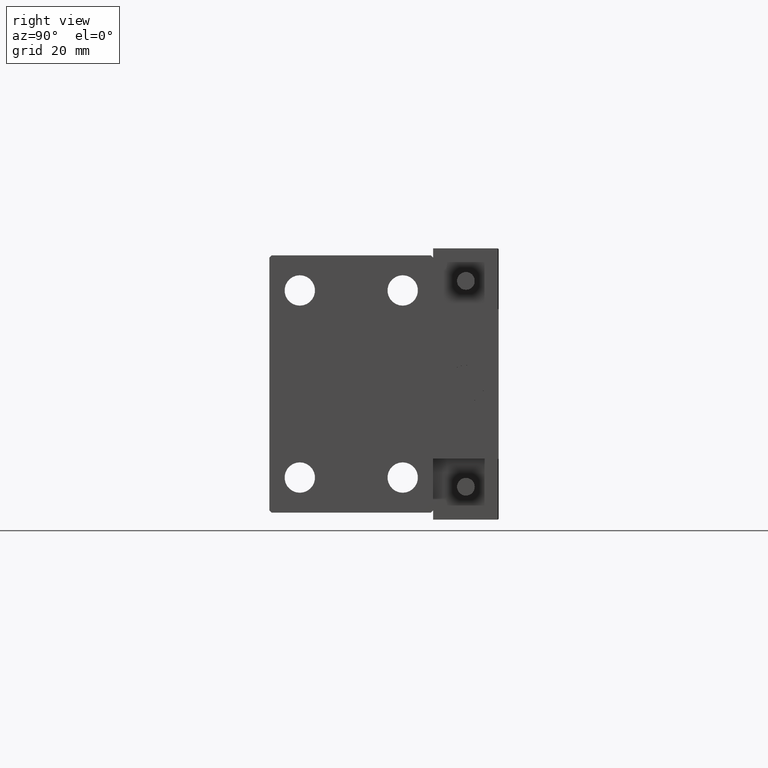
[diagram: clean part render]
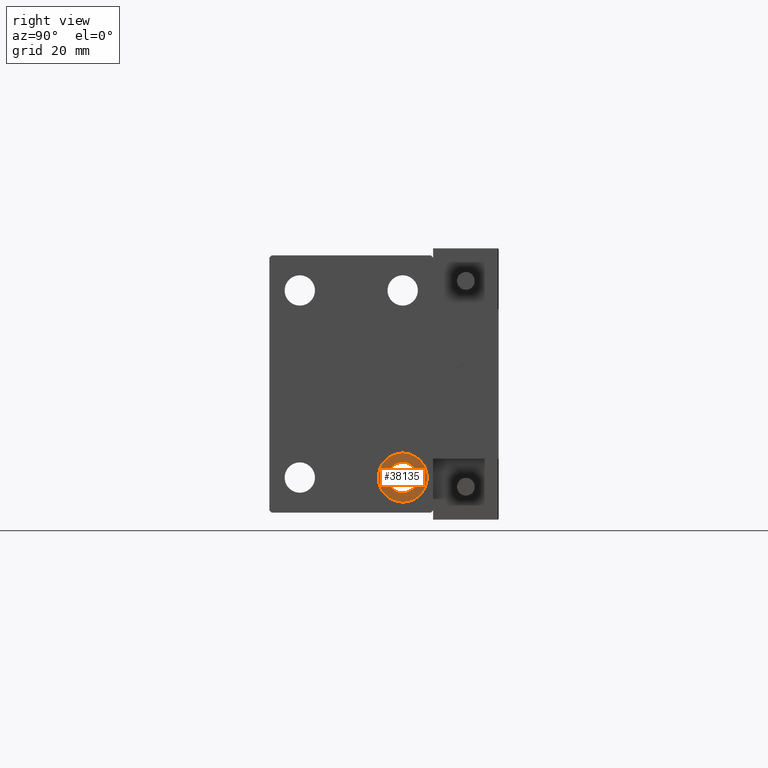
[diagram: same view with one face highlighted and labeled with its STEP entity id]
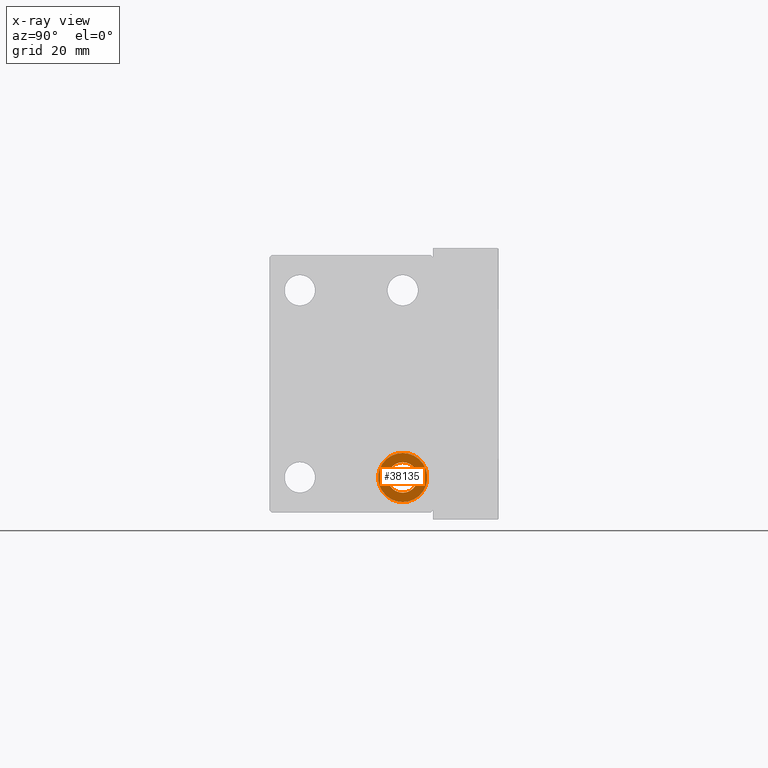
[diagram: x-ray of the same camera — body ghosted, the highlighted face saturated]
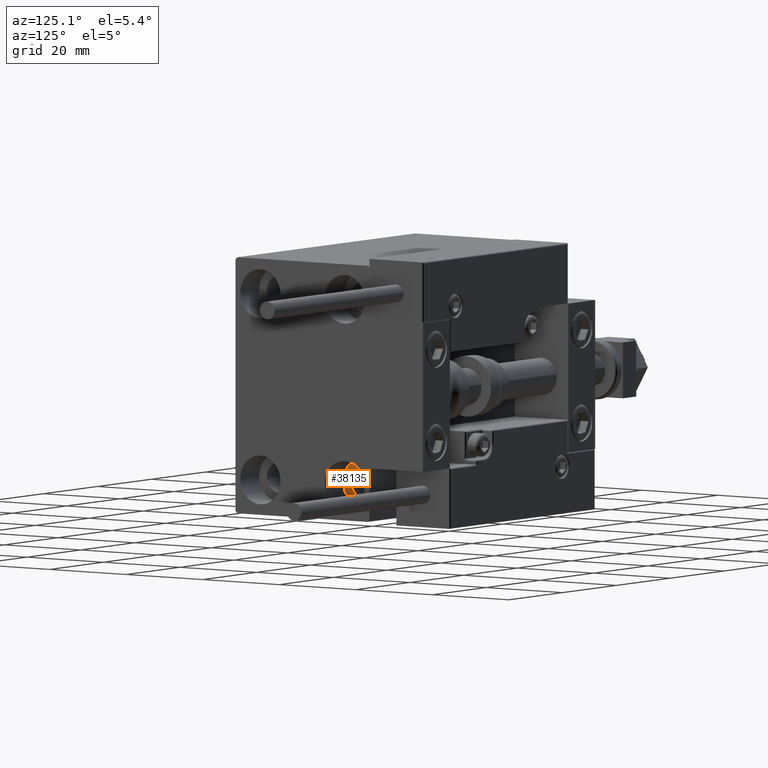
[diagram: same view with one face highlighted and labeled with its STEP entity id]
A machine part, right view. The second image highlights one B-rep face of the part: STEP entity #38135.
The next image is the same camera in x-ray: the body ghosted, the highlighted face saturated — about 0% of this face is hidden behind the body in this view.
A second angle (auxiliary view) of the same face is appended — the face is thin or edge-on in the first view.
In plain terms, the highlighted planar face has unit normal (1, 0, 0).
Its self-contained STEP definition (entity closure, byte-faithful):
#141 = DIRECTION ( 'NONE',  ( -1.000000000000000000, -0.000000000000000000, -0.000000000000000000 ) ) ;
#470 = AXIS2_PLACEMENT_3D ( 'NONE', #50059, #4140, #23151 ) ;
#475 = FACE_OUTER_BOUND ( 'NONE', #32744, .T. ) ;
#1004 = EDGE_CURVE ( 'NONE', #49823, #31618, #28019, .T. ) ;
#2010 = CARTESIAN_POINT ( 'NONE',  ( 59.00000000000000711, 11.00000000000000355, -16.75000000000000000 ) ) ;
#2037 = AXIS2_PLACEMENT_3D ( 'NONE', #19904, #141, #11539 ) ;
#3212 = CARTESIAN_POINT ( 'NONE',  ( 59.00000000000000711, 11.00000000000000355, -23.25000000000000000 ) ) ;
#3259 = ORIENTED_EDGE ( 'NONE', *, *, #3678, .T. ) ;
#3678 = EDGE_CURVE ( 'NONE', #31618, #49823, #37736, .T. ) ;
#4140 = DIRECTION ( 'NONE',  ( -1.000000000000000000, -0.000000000000000000, -0.000000000000000000 ) ) ;
#5265 = FACE_BOUND ( 'NONE', #18718, .T. ) ;
#6152 = DIRECTION ( 'NONE',  ( -1.000000000000000000, -0.000000000000000000, -0.000000000000000000 ) ) ;
#6706 = CARTESIAN_POINT ( 'NONE',  ( 59.00000000000000711, 11.00000000000000355, -25.25000000000000000 ) ) ;
#7121 = AXIS2_PLACEMENT_3D ( 'NONE', #29823, #18664, #14616 ) ;
#9822 = EDGE_CURVE ( 'NONE', #16855, #29879, #34684, .T. ) ;
#11539 = DIRECTION ( 'NONE',  ( 0.000000000000000000, 0.000000000000000000, 1.000000000000000000 ) ) ;
#11880 = CARTESIAN_POINT ( 'NONE',  ( 59.00000000000000711, 11.00000000000000355, -20.00000000000000000 ) ) ;
#13437 = AXIS2_PLACEMENT_3D ( 'NONE', #37362, #6152, #14269 ) ;
#14269 = DIRECTION ( 'NONE',  ( 0.000000000000000000, 0.000000000000000000, -1.000000000000000000 ) ) ;
#14616 = DIRECTION ( 'NONE',  ( 0.000000000000000000, 0.000000000000000000, 1.000000000000000000 ) ) ;
#15688 = DIRECTION ( 'NONE',  ( 0.000000000000000000, 0.000000000000000000, 1.000000000000000000 ) ) ;
#16855 = VERTEX_POINT ( 'NONE', #6706 ) ;
#18260 = ORIENTED_EDGE ( 'NONE', *, *, #1004, .T. ) ;
#18664 = DIRECTION ( 'NONE',  ( -1.000000000000000000, -0.000000000000000000, -0.000000000000000000 ) ) ;
#18718 = EDGE_LOOP ( 'NONE', ( #3259, #18260 ) ) ;
#19904 = CARTESIAN_POINT ( 'NONE',  ( 59.00000000000000711, 11.00000000000000355, -20.00000000000000000 ) ) ;
#23151 = DIRECTION ( 'NONE',  ( 0.000000000000000000, 0.000000000000000000, -1.000000000000000000 ) ) ;
#23896 = CIRCLE ( 'NONE', #2037, 5.250000000000000888 ) ;
#24042 = DIRECTION ( 'NONE',  ( 1.000000000000000000, 0.000000000000000000, -0.000000000000000000 ) ) ;
#24285 = PLANE ( 'NONE',  #26261 ) ;
#26261 = AXIS2_PLACEMENT_3D ( 'NONE', #11880, #24042, #15688 ) ;
#26487 = CARTESIAN_POINT ( 'NONE',  ( 59.00000000000000711, 11.00000000000000355, -14.75000000000000000 ) ) ;
#27783 = ORIENTED_EDGE ( 'NONE', *, *, #9822, .F. ) ;
#28019 = CIRCLE ( 'NONE', #13437, 3.249999999999999556 ) ;
#29187 = ORIENTED_EDGE ( 'NONE', *, *, #49069, .F. ) ;
#29823 = CARTESIAN_POINT ( 'NONE',  ( 59.00000000000000711, 11.00000000000000355, -20.00000000000000000 ) ) ;
#29879 = VERTEX_POINT ( 'NONE', #26487 ) ;
#31618 = VERTEX_POINT ( 'NONE', #2010 ) ;
#32744 = EDGE_LOOP ( 'NONE', ( #27783, #29187 ) ) ;
#34684 = CIRCLE ( 'NONE', #7121, 5.250000000000000888 ) ;
#37362 = CARTESIAN_POINT ( 'NONE',  ( 59.00000000000000711, 11.00000000000000355, -20.00000000000000000 ) ) ;
#37736 = CIRCLE ( 'NONE', #470, 3.249999999999999556 ) ;
#38135 = ADVANCED_FACE ( 'NONE', ( #475, #5265 ), #24285, .T. ) ;
#49069 = EDGE_CURVE ( 'NONE', #29879, #16855, #23896, .T. ) ;
#49823 = VERTEX_POINT ( 'NONE', #3212 ) ;
#50059 = CARTESIAN_POINT ( 'NONE',  ( 59.00000000000000711, 11.00000000000000355, -20.00000000000000000 ) ) ;